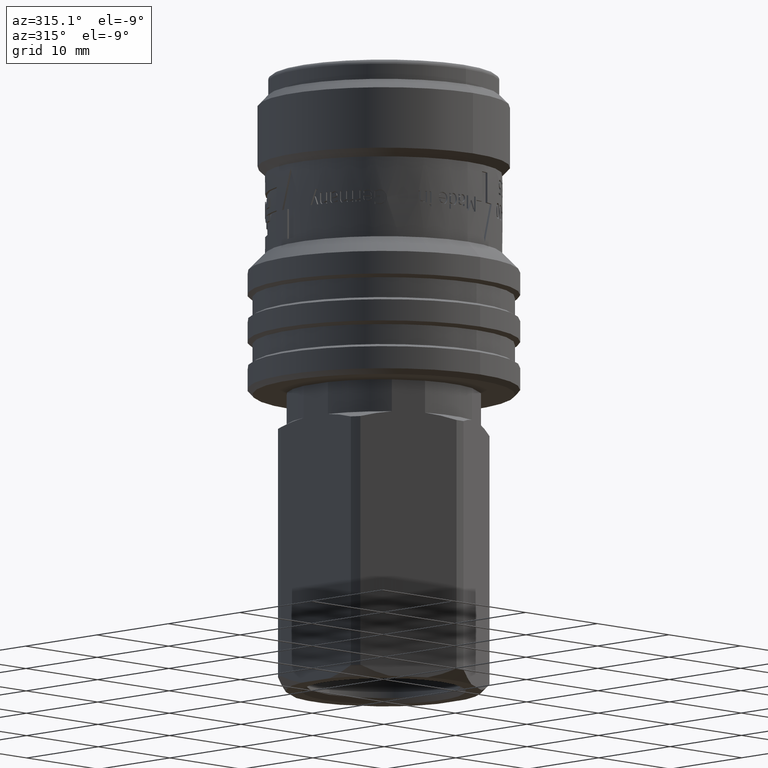
[diagram: clean part render]
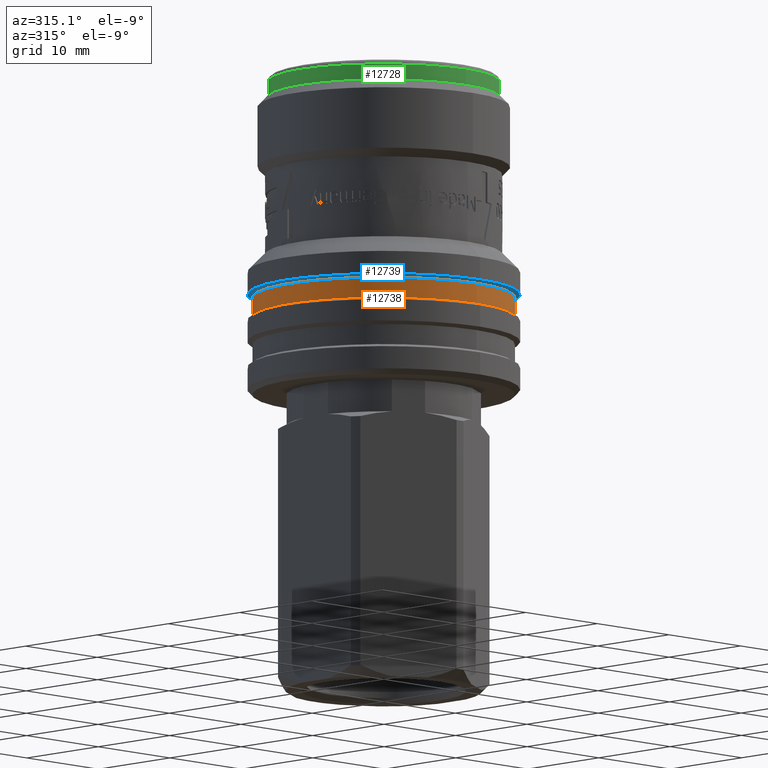
[diagram: same view with three faces highlighted in distinct colors, each labeled with its STEP entity id]
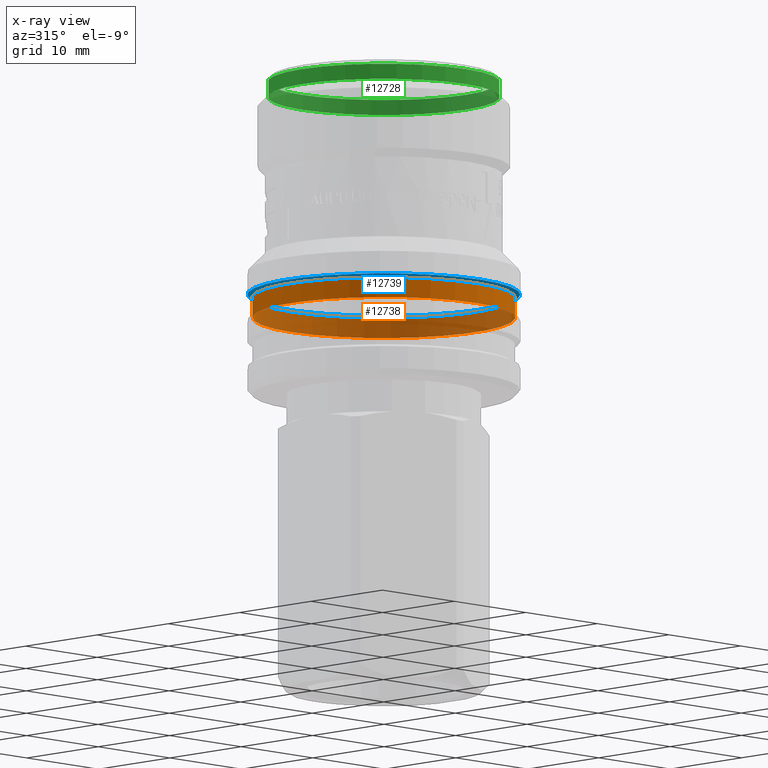
[diagram: x-ray of the same camera — body ghosted, the three highlighted faces saturated]
A machine part, auxiliary view with three faces highlighted in distinct colors.
The next image is the same camera in x-ray (body ghosted, the three faces saturated) — at least one of them is partly hidden behind the body in this view.
Their STEP definitions:

[orange] entity #12738 — the highlighted cylindrical surface (bore or boss wall) has radius 13 mm, axis along (0, 0, 1).
#1159=FACE_BOUND($,#4236,.T.);
#1258=CYLINDRICAL_SURFACE($,#13361,13.);
#3487=FACE_OUTER_BOUND($,#4235,.T.);
#4235=EDGE_LOOP($,(#11084));
#4236=EDGE_LOOP($,(#11085));
#4467=CIRCLE($,#13360,13.);
#4468=CIRCLE($,#13362,13.);
#5678=VERTEX_POINT($,#88759);
#5679=VERTEX_POINT($,#88762);
#7483=EDGE_CURVE($,#5678,#5678,#4467,.T.);
#7484=EDGE_CURVE($,#5679,#5679,#4468,.T.);
#11084=ORIENTED_EDGE($,*,*,#7483,.T.);
#11085=ORIENTED_EDGE($,*,*,#7484,.F.);
#12738=ADVANCED_FACE($,(#3487,#1159),#1258,.T.);
#13360=AXIS2_PLACEMENT_3D($,#88760,#15372,#15373);
#13361=AXIS2_PLACEMENT_3D($,#88761,#15374,#15375);
#13362=AXIS2_PLACEMENT_3D($,#88763,#15376,#15377);
#15372=DIRECTION('center_axis',(0.,0.,1.));
#15373=DIRECTION('ref_axis',(-1.,0.,0.));
#15374=DIRECTION('center_axis',(0.,0.,1.));
#15375=DIRECTION('ref_axis',(0.,-1.,0.));
#15376=DIRECTION('center_axis',(0.,0.,1.));
#15377=DIRECTION('ref_axis',(-1.,0.,0.));
#88759=CARTESIAN_POINT('',(0.,-13.,-6.34999999999998));
#88760=CARTESIAN_POINT('Origin',(0.,0.,-6.34999999999998));
#88761=CARTESIAN_POINT('Origin',(0.,0.,-5.34999999999998));
#88762=CARTESIAN_POINT('',(0.,-13.,-4.34999999999998));
#88763=CARTESIAN_POINT('Origin',(0.,0.,-4.34999999999998));

[blue] entity #12739 — the highlighted conical surface has half-angle 60 deg.
#1160=FACE_BOUND($,#4238,.T.);
#1183=CONICAL_SURFACE($,#13363,13.25,60.0000000000003);
#3488=FACE_OUTER_BOUND($,#4237,.T.);
#4237=EDGE_LOOP($,(#11086));
#4238=EDGE_LOOP($,(#11087));
#4468=CIRCLE($,#13362,13.);
#4469=CIRCLE($,#13364,13.5);
#5679=VERTEX_POINT($,#88762);
#5680=VERTEX_POINT($,#88765);
#7484=EDGE_CURVE($,#5679,#5679,#4468,.T.);
#7485=EDGE_CURVE($,#5680,#5680,#4469,.T.);
#11086=ORIENTED_EDGE($,*,*,#7484,.T.);
#11087=ORIENTED_EDGE($,*,*,#7485,.F.);
#12739=ADVANCED_FACE($,(#3488,#1160),#1183,.T.);
#13362=AXIS2_PLACEMENT_3D($,#88763,#15376,#15377);
#13363=AXIS2_PLACEMENT_3D($,#88764,#15378,#15379);
#13364=AXIS2_PLACEMENT_3D($,#88766,#15380,#15381);
#15376=DIRECTION('center_axis',(0.,0.,1.));
#15377=DIRECTION('ref_axis',(-1.,0.,0.));
#15378=DIRECTION('center_axis',(0.,0.,1.));
#15379=DIRECTION('ref_axis',(0.,-1.,0.));
#15380=DIRECTION('center_axis',(0.,0.,1.));
#15381=DIRECTION('ref_axis',(-1.,0.,0.));
#88762=CARTESIAN_POINT('',(0.,-13.,-4.34999999999998));
#88763=CARTESIAN_POINT('Origin',(0.,0.,-4.34999999999998));
#88764=CARTESIAN_POINT('Origin',(0.,0.,-4.20566243270258));
#88765=CARTESIAN_POINT('',(0.,-13.5,-4.06132486540518));
#88766=CARTESIAN_POINT('Origin',(0.,0.,-4.06132486540518));

[green] entity #12728 — the highlighted cylindrical surface (bore or boss wall) has radius 11.5 mm, axis along (0, 0, 1).
#1148=FACE_BOUND($,#4216,.T.);
#1254=CYLINDRICAL_SURFACE($,#13342,11.5);
#3478=FACE_OUTER_BOUND($,#4215,.T.);
#4215=EDGE_LOOP($,(#11053));
#4216=EDGE_LOOP($,(#11054));
#4458=CIRCLE($,#13341,11.5);
#4459=CIRCLE($,#13343,11.5);
#5669=VERTEX_POINT($,#88731);
#5670=VERTEX_POINT($,#88734);
#7474=EDGE_CURVE($,#5669,#5669,#4458,.T.);
#7475=EDGE_CURVE($,#5670,#5670,#4459,.T.);
#11053=ORIENTED_EDGE($,*,*,#7474,.T.);
#11054=ORIENTED_EDGE($,*,*,#7475,.F.);
#12728=ADVANCED_FACE($,(#3478,#1148),#1254,.T.);
#13341=AXIS2_PLACEMENT_3D($,#88732,#15334,#15335);
#13342=AXIS2_PLACEMENT_3D($,#88733,#15336,#15337);
#13343=AXIS2_PLACEMENT_3D($,#88735,#15338,#15339);
#15334=DIRECTION('center_axis',(0.,0.,1.));
#15335=DIRECTION('ref_axis',(-1.,0.,0.));
#15336=DIRECTION('center_axis',(0.,0.,1.));
#15337=DIRECTION('ref_axis',(0.,-1.,0.));
#15338=DIRECTION('center_axis',(0.,0.,1.));
#15339=DIRECTION('ref_axis',(-1.,0.,0.));
#88731=CARTESIAN_POINT('',(0.,-11.5,15.75));
#88732=CARTESIAN_POINT('Origin',(0.,0.,15.75));
#88733=CARTESIAN_POINT('Origin',(0.,0.,16.5));
#88734=CARTESIAN_POINT('',(0.,-11.5,17.25));
#88735=CARTESIAN_POINT('Origin',(0.,0.,17.25));